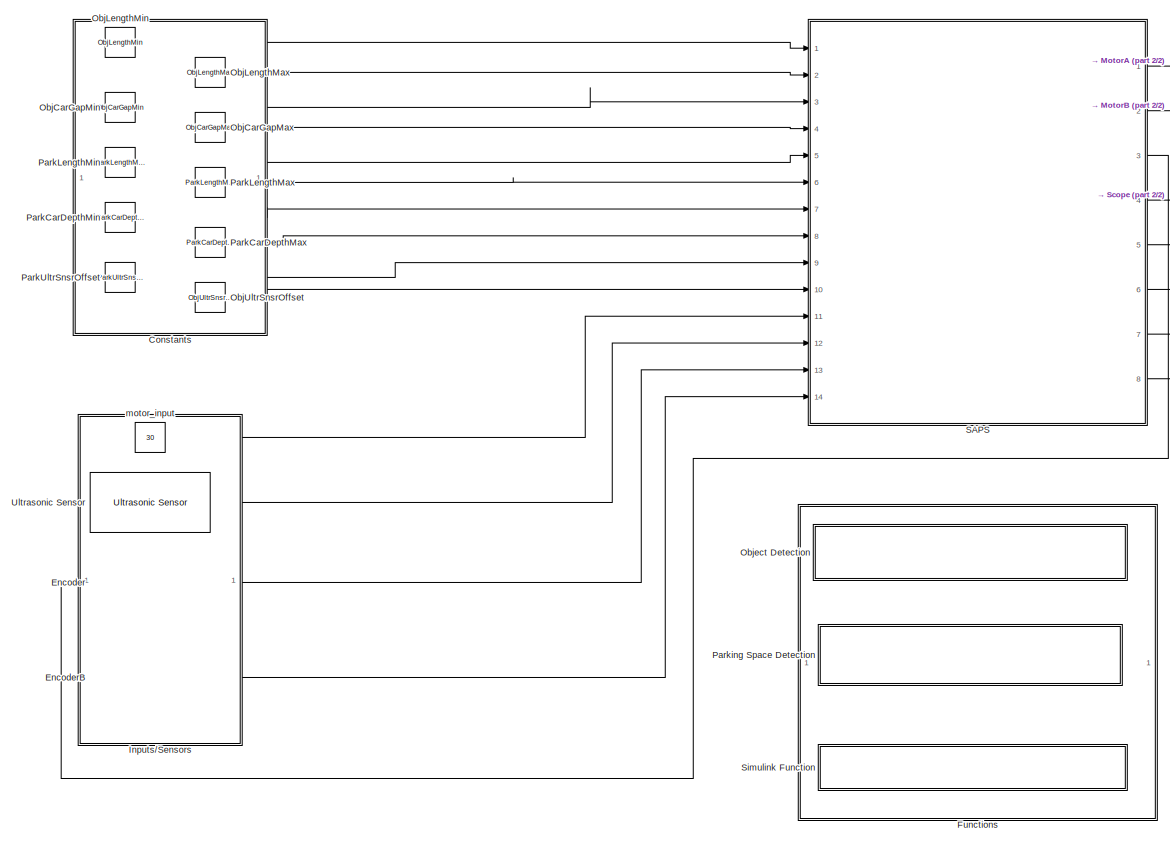
[diagram: root canvas - part 1/2, left side, full height]
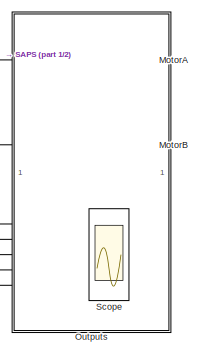
[diagram: root canvas - part 2/2, top right region]
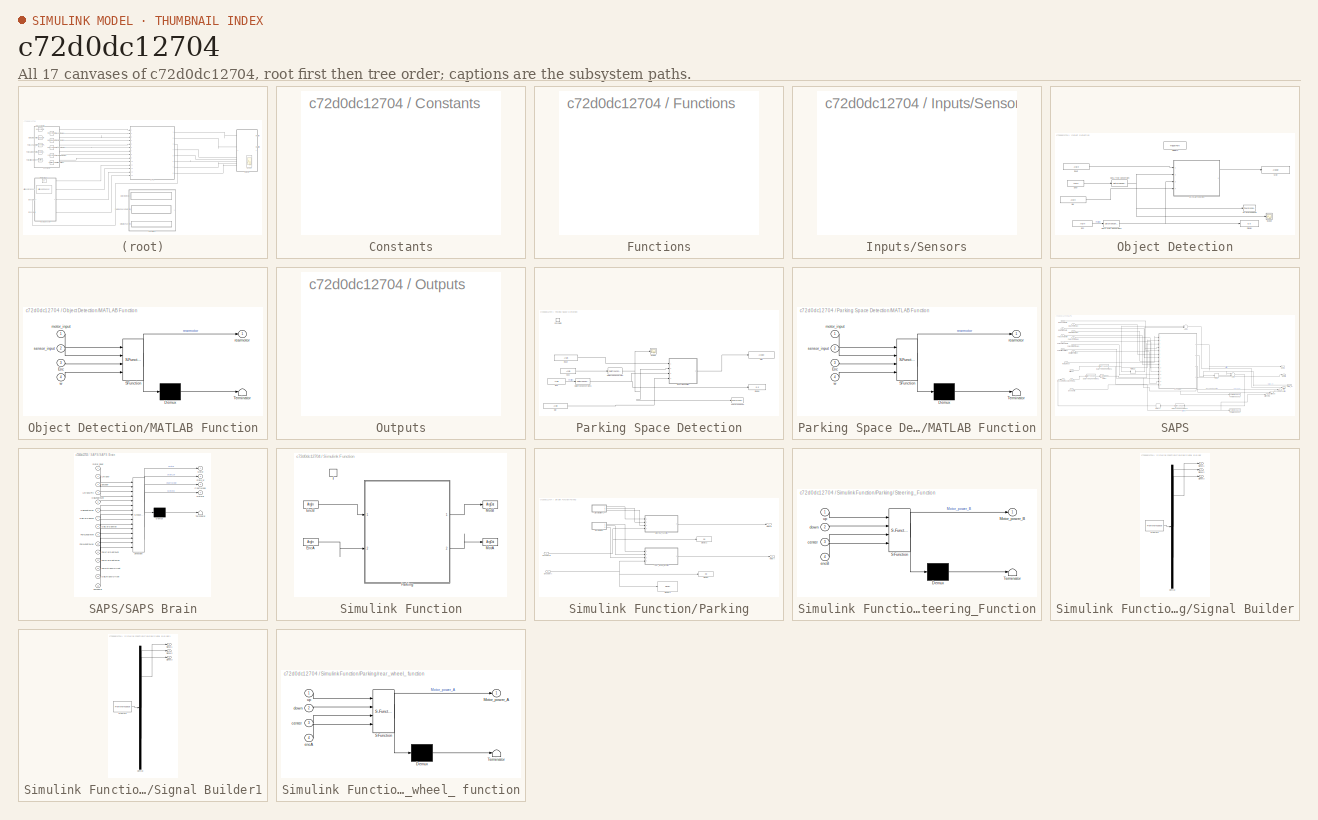
[diagram: thumbnail index - all 17 canvases of the model, root first then tree order]
MODEL slx_c72d0dc12704
KIND model
CONFIG AbsTol = auto
CONFIG FixedStep = auto
CONFIG MaxStep = auto
CONFIG MinStep = auto
CONFIG RelTol = 1e-3
CONFIG SampleTimeConstraint = Unconstrained
CONFIG Solver = ode45
CONFIG SolverMode = Auto
CONFIG SolverName = ode45
CONFIG StartTime = 0.0
CONFIG StopTime = 10.0
BLOCK [SubSystem] Constants
  Ports = []
  RequestExecContextInheritance = off
BLOCK [Reference] Encoder  REF=legoev3lib/Encoder
  Ports = [1, 1]
  SourceBlock = legoev3lib/Encoder
  SourceType = LEGO MINDSTORMS EV3 Encoder
  opMode = Reset by external signal
  portNumber = A
  sampleTime = 0.01
BLOCK [Reference] EncoderB  REF=legoev3lib/Encoder
  Ports = [0, 1]
  SourceBlock = legoev3lib/Encoder
  SourceType = LEGO MINDSTORMS EV3 Encoder
  opMode = No reset
  portNumber = B
  sampleTime = 0.01
BLOCK [SubSystem] Functions
  Ports = []
  RequestExecContextInheritance = off
BLOCK [SubSystem] Inputs//Sensors
  Ports = []
  RequestExecContextInheritance = off
BLOCK [Reference] MotorA  REF=legoev3lib/Motor
  Ports = [1]
  SourceBlock = legoev3lib/Motor
  SourceType = LEGO MINDSTORMS EV3 Motor
  sportNumber = A
  sstopAction = Brake
BLOCK [Reference] MotorB  REF=legoev3lib/Motor
  Ports = [1]
  SourceBlock = legoev3lib/Motor
  SourceType = LEGO MINDSTORMS EV3 Motor
  sportNumber = B
  sstopAction = Brake
BLOCK [Constant] ObjCarGapMax
  Value = ObjCarGapMax
BLOCK [Constant] ObjCarGapMin
  Value = ObjCarGapMin
BLOCK [Constant] ObjLengthMax
  Value = ObjLengthMax
BLOCK [Constant] ObjLengthMin
  Value = ObjLengthMin
BLOCK [Constant] ObjUltrSnsrOffset
  Value = ObjUltrSnsrOffset
BLOCK [SubSystem] Object Detection
  Ports = [0, 0, 0, 1]
  RequestExecContextInheritance = off
  TreatAsAtomicUnit = on
BLOCK [DataTypeConversion] Object Detection/Data Type Conversion
  RndMeth = Floor
  SaturateOnIntegerOverflow = off
BLOCK [DataTypeConversion] Object Detection/Data Type Conversion1
  RndMeth = Floor
  SaturateOnIntegerOverflow = off
BLOCK [Display] Object Detection/Display
  Decimation = 1
  Ports = [1]
BLOCK [ArgIn] Object Detection/Enc
  ArgumentName = Enc
  DisableCoverage = on
  Port = 3
BLOCK [SubSystem] Object Detection/MATLAB Function
  ErrorFcn = Stateflow.Translate.translate
  PermitHierarchicalResolution = ExplicitOnly
  Ports = [4, 1]
  RequestExecContextInheritance = off
  SFBlockType = MATLAB Function
  TreatAsAtomicUnit = on
BLOCK [Demux] Object Detection/MATLAB Function/ Demux 
  Outputs = 1
  Ports = [1, 1]
BLOCK [S-Function] Object Detection/MATLAB Function/ SFunction 
  EnableBusSupport = on
  FunctionName = sf_sfun
  PortCounts = [4 2]
  Ports = [4, 2]
  Tag = Stateflow S-Function stateflow6 2
BLOCK [Terminator] Object Detection/MATLAB Function/ Terminator 
BLOCK [Inport] Object Detection/MATLAB Function/Enc
  IconDisplay = Port number
  Port = 3
BLOCK [Inport] Object Detection/MATLAB Function/motor_input
  IconDisplay = Port number
BLOCK [Outport] Object Detection/MATLAB Function/rearmotor
  IconDisplay = Port number
BLOCK [Inport] Object Detection/MATLAB Function/sensor_input
  IconDisplay = Port number
  Port = 2
BLOCK [Inport] Object Detection/MATLAB Function/w
  IconDisplay = Port number
  Port = 4
BLOCK [ArgOut] Object Detection/Mot
  ArgumentName = MotA
  DisableCoverage = on
BLOCK [TriggerPort] Object Detection/ObjDetn
  FunctionName = ObjDetn
  IsSimulinkFunction = on
  Ports = []
  StatesWhenEnabling = held
  TriggerType = function-call
BLOCK [Scope] Object Detection/Scope
  Floating = off
  NumInputPorts = 1
  Ports = [1]
  YMax = 3.15
  YMin = 2.85
BLOCK [ArgIn] Object Detection/Snsr
  ArgumentName = Snsr
  DisableCoverage = on
  Port = 2
BLOCK [ToWorkspace] Object Detection/To Workspace2
  FixptAsFi = on
  MaxDataPoints = inf
  Ports = [1]
  SampleTime = -1
  Save2DSignal = 3-D array (concatenate along third dimension)
  VariableName = UltrSnsr_w
BLOCK [ArgIn] Object Detection/input
  ArgumentName = input
  DisableCoverage = on
BLOCK [ArgIn] Object Detection/ww
  ArgumentName = ww
  DisableCoverage = on
  Port = 4
BLOCK [SubSystem] Outputs
  Ports = []
  RequestExecContextInheritance = off
BLOCK [Constant] ParkCarDepthMax
  Value = ParkCarDepthMax
BLOCK [Constant] ParkCarDepthMin
  Value = ParkCarDepthMin
BLOCK [Constant] ParkLengthMax
  Value = ParkLengthMax
BLOCK [Constant] ParkLengthMin
  Value = ParkLengthMin
BLOCK [Constant] ParkUltrSnsrOffset
  Value = ParkUltrSnsrOffset
BLOCK [SubSystem] Parking Space Detection
  Ports = [0, 0, 0, 1]
  RequestExecContextInheritance = off
  TreatAsAtomicUnit = on
BLOCK [DataTypeConversion] Parking Space Detection/Data Type Conversion
  RndMeth = Floor
  SaturateOnIntegerOverflow = off
BLOCK [DataTypeConversion] Parking Space Detection/Data Type Conversion1
  RndMeth = Floor
  SaturateOnIntegerOverflow = off
BLOCK [Display] Parking Space Detection/Display
  Decimation = 1
  Ports = [1]
BLOCK [ArgIn] Parking Space Detection/Enc
  ArgumentName = Enc
  DisableCoverage = on
  Port = 3
BLOCK [SubSystem] Parking Space Detection/MATLAB Function
  ErrorFcn = Stateflow.Translate.translate
  PermitHierarchicalResolution = ExplicitOnly
  Ports = [4, 1]
  RequestExecContextInheritance = off
  SFBlockType = MATLAB Function
  TreatAsAtomicUnit = on
BLOCK [Demux] Parking Space Detection/MATLAB Function/ Demux 
  Outputs = 1
  Ports = [1, 1]
BLOCK [S-Function] Parking Space Detection/MATLAB Function/ SFunction 
  EnableBusSupport = on
  FunctionName = sf_sfun
  PortCounts = [4 2]
  Ports = [4, 2]
  Tag = Stateflow S-Function stateflow6 1
BLOCK [Terminator] Parking Space Detection/MATLAB Function/ Terminator 
BLOCK [Inport] Parking Space Detection/MATLAB Function/Enc
  IconDisplay = Port number
  Port = 3
BLOCK [Inport] Parking Space Detection/MATLAB Function/motor_input
  IconDisplay = Port number
BLOCK [Outport] Parking Space Detection/MATLAB Function/rearmotor
  IconDisplay = Port number
BLOCK [Inport] Parking Space Detection/MATLAB Function/sensor_input
  IconDisplay = Port number
  Port = 2
BLOCK [Inport] Parking Space Detection/MATLAB Function/w
  IconDisplay = Port number
  Port = 4
BLOCK [ArgOut] Parking Space Detection/Mot
  ArgumentName = MotA
  DisableCoverage = on
BLOCK [TriggerPort] Parking Space Detection/ParkDetn
  FunctionName = ParkDetn
  IsSimulinkFunction = on
  Ports = []
  StatesWhenEnabling = held
  TriggerType = function-call
BLOCK [Scope] Parking Space Detection/Scope
  Floating = off
  NumInputPorts = 1
  Ports = [1]
  SaveName = ScopeData1
  YMax = 3
  YMin = 3
BLOCK [ArgIn] Parking Space Detection/Snsr
  ArgumentName = Snsr
  DisableCoverage = on
  Port = 2
BLOCK [ToWorkspace] Parking Space Detection/To Workspace2
  FixptAsFi = on
  MaxDataPoints = inf
  Ports = [1]
  SampleTime = -1
  Save2DSignal = 3-D array (concatenate along third dimension)
  VariableName = w1
BLOCK [ArgIn] Parking Space Detection/input
  ArgumentName = input
  DisableCoverage = on
BLOCK [ArgIn] Parking Space Detection/ww
  ArgumentName = ww
  DisableCoverage = on
  Port = 4
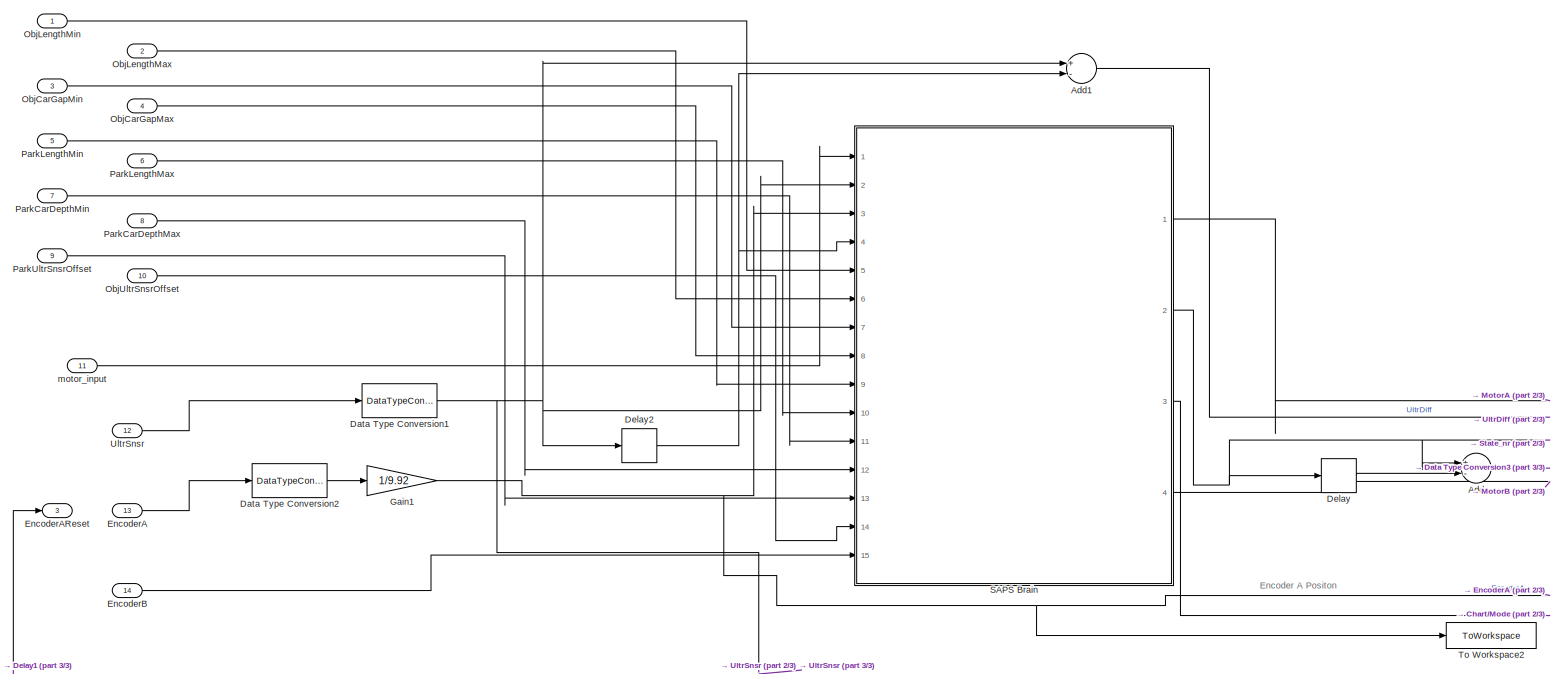
[diagram: SAPS - part 1/3, most of the canvas]
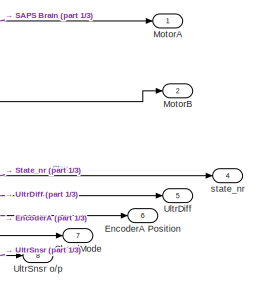
[diagram: SAPS - part 2/3, middle right region]
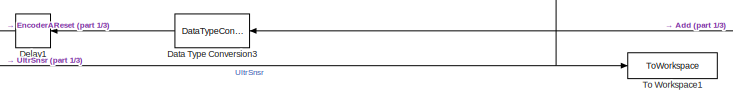
[diagram: SAPS - part 3/3, bottom center region]
BLOCK [SubSystem] SAPS
  Ports = [14, 8]
  RequestExecContextInheritance = off
BLOCK [Sum] SAPS/Add
  InputSameDT = off
  Inputs = +-
  OutDataTypeStr = Inherit: Inherit via internal rule
  Ports = [2, 1]
  SaturateOnIntegerOverflow = off
BLOCK [Sum] SAPS/Add1
  InputSameDT = off
  Inputs = +-
  OutDataTypeStr = Inherit: Inherit via internal rule
  Ports = [2, 1]
  SaturateOnIntegerOverflow = off
BLOCK [Outport] SAPS/Chart//Mode
  IconDisplay = Port number
  Port = 7
BLOCK [DataTypeConversion] SAPS/Data Type Conversion1
  RndMeth = Floor
  SaturateOnIntegerOverflow = off
BLOCK [DataTypeConversion] SAPS/Data Type Conversion2
  RndMeth = Floor
  SaturateOnIntegerOverflow = off
BLOCK [DataTypeConversion] SAPS/Data Type Conversion3
  OutDataTypeStr = int8
  RndMeth = Floor
  SaturateOnIntegerOverflow = off
BLOCK [Delay] SAPS/Delay
  DelayLength = 1
  InitialCondition = 0
  InputPortMap = u0
  Ports = [1, 1]
BLOCK [Delay] SAPS/Delay1
  DelayLength = 1
  InitialCondition = 0
  InputPortMap = u0
  Ports = [1, 1]
BLOCK [Delay] SAPS/Delay2
  DelayLength = 1
  InitialCondition = 0
  InputPortMap = u0
  Ports = [1, 1]
BLOCK [Inport] SAPS/EncoderA
  IconDisplay = Port number
  Port = 13
BLOCK [Outport] SAPS/EncoderA Position
  IconDisplay = Port number
  Port = 6
BLOCK [Outport] SAPS/EncoderAReset
  IconDisplay = Port number
  Port = 3
BLOCK [Inport] SAPS/EncoderB
  IconDisplay = Port number
  Port = 14
BLOCK [Gain] SAPS/Gain1
  Gain = 1/9.92
  OutDataTypeStr = Inherit: Inherit via internal rule
  ParamDataTypeStr = Inherit: Inherit via internal rule
  SaturateOnIntegerOverflow = off
BLOCK [Outport] SAPS/MotorA
  IconDisplay = Port number
BLOCK [Outport] SAPS/MotorB
  IconDisplay = Port number
  Port = 2
BLOCK [Inport] SAPS/ObjCarGapMax
  IconDisplay = Port number
  Port = 4
BLOCK [Inport] SAPS/ObjCarGapMin
  IconDisplay = Port number
  Port = 3
BLOCK [Inport] SAPS/ObjLengthMax
  IconDisplay = Port number
  Port = 2
BLOCK [Inport] SAPS/ObjLengthMin
  IconDisplay = Port number
BLOCK [Inport] SAPS/ObjUltrSnsrOffset
  IconDisplay = Port number
  Port = 10
BLOCK [Inport] SAPS/ParkCarDepthMax
  IconDisplay = Port number
  Port = 8
BLOCK [Inport] SAPS/ParkCarDepthMin
  IconDisplay = Port number
  Port = 7
BLOCK [Inport] SAPS/ParkLengthMax
  IconDisplay = Port number
  Port = 6
BLOCK [Inport] SAPS/ParkLengthMin
  IconDisplay = Port number
  Port = 5
BLOCK [Inport] SAPS/ParkUltrSnsrOffset
  IconDisplay = Port number
  Port = 9
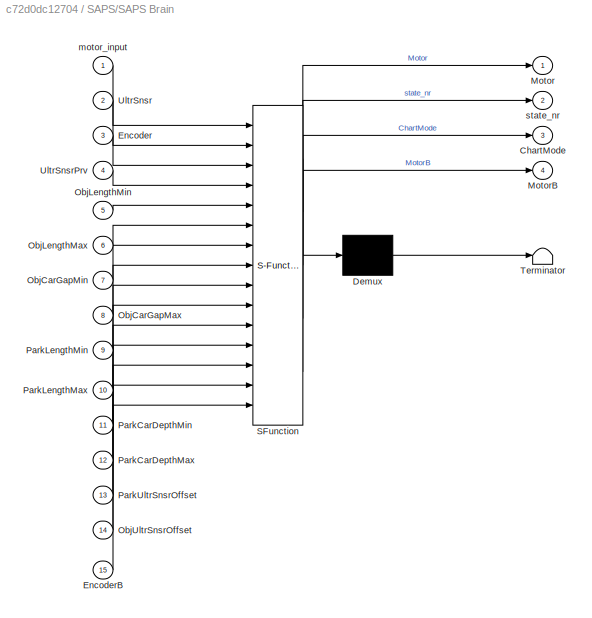
BLOCK [SubSystem] SAPS/SAPS Brain
  ErrorFcn = Stateflow.Translate.translate
  PermitHierarchicalResolution = ExplicitOnly
  Ports = [15, 4]
  RequestExecContextInheritance = off
  SFBlockType = Chart
  TreatAsAtomicUnit = on
BLOCK [Demux] SAPS/SAPS Brain/ Demux 
  Outputs = 1
  Ports = [1, 1]
BLOCK [S-Function] SAPS/SAPS Brain/ SFunction 
  EnableBusSupport = on
  FunctionName = sf_sfun
  PortCounts = [15 5]
  Ports = [15, 5]
  Tag = Stateflow S-Function stateflow6 3
BLOCK [Terminator] SAPS/SAPS Brain/ Terminator 
BLOCK [Outport] SAPS/SAPS Brain/ChartMode
  IconDisplay = Port number
  Port = 3
BLOCK [Inport] SAPS/SAPS Brain/Encoder
  IconDisplay = Port number
  Port = 3
BLOCK [Inport] SAPS/SAPS Brain/EncoderB
  IconDisplay = Port number
  Port = 15
BLOCK [Outport] SAPS/SAPS Brain/Motor
  IconDisplay = Port number
BLOCK [Outport] SAPS/SAPS Brain/MotorB
  IconDisplay = Port number
  Port = 4
BLOCK [Inport] SAPS/SAPS Brain/ObjCarGapMax
  IconDisplay = Port number
  Port = 8
BLOCK [Inport] SAPS/SAPS Brain/ObjCarGapMin
  IconDisplay = Port number
  Port = 7
BLOCK [Inport] SAPS/SAPS Brain/ObjLengthMax
  IconDisplay = Port number
  Port = 6
BLOCK [Inport] SAPS/SAPS Brain/ObjLengthMin
  IconDisplay = Port number
  Port = 5
BLOCK [Inport] SAPS/SAPS Brain/ObjUltrSnsrOffset
  IconDisplay = Port number
  Port = 14
BLOCK [Inport] SAPS/SAPS Brain/ParkCarDepthMax
  IconDisplay = Port number
  Port = 12
BLOCK [Inport] SAPS/SAPS Brain/ParkCarDepthMin
  IconDisplay = Port number
  Port = 11
BLOCK [Inport] SAPS/SAPS Brain/ParkLengthMax
  IconDisplay = Port number
  Port = 10
BLOCK [Inport] SAPS/SAPS Brain/ParkLengthMin
  IconDisplay = Port number
  Port = 9
BLOCK [Inport] SAPS/SAPS Brain/ParkUltrSnsrOffset
  IconDisplay = Port number
  Port = 13
BLOCK [Inport] SAPS/SAPS Brain/UltrSnsr
  IconDisplay = Port number
  Port = 2
BLOCK [Inport] SAPS/SAPS Brain/UltrSnsrPrv
  IconDisplay = Port number
  Port = 4
BLOCK [Inport] SAPS/SAPS Brain/motor_input
  IconDisplay = Port number
BLOCK [Outport] SAPS/SAPS Brain/state_nr
  IconDisplay = Port number
  Port = 2
BLOCK [ToWorkspace] SAPS/To Workspace1
  FixptAsFi = on
  MaxDataPoints = inf
  Ports = [1]
  SampleTime = -1
  Save2DSignal = 3-D array (concatenate along third dimension)
  VariableName = problem_encoder1
BLOCK [ToWorkspace] SAPS/To Workspace2
  FixptAsFi = on
  MaxDataPoints = inf
  Ports = [1]
  SampleTime = -1
  Save2DSignal = 3-D array (concatenate along third dimension)
  VariableName = problem_encoder
BLOCK [Outport] SAPS/UltrDiff
  IconDisplay = Port number
  Port = 5
BLOCK [Inport] SAPS/UltrSnsr
  IconDisplay = Port number
  Port = 12
BLOCK [Outport] SAPS/UltrSnsr o//p
  IconDisplay = Port number
  Port = 8
BLOCK [Inport] SAPS/motor_input
  IconDisplay = Port number
  Port = 11
BLOCK [Outport] SAPS/state_nr
  IconDisplay = Port number
  Port = 4
BLOCK [Scope] Scope
  Floating = off
  NumInputPorts = 5
  Ports = [5]
  SaveName = ScopeData4
  TimeRange = 9.76
  YMax = 2~20~60~2~40
  YMin = 1~-20~0~1~0
BLOCK [SubSystem] Simulink Function
  Ports = [0, 0, 0, 1]
  RequestExecContextInheritance = off
  TreatAsAtomicUnit = on
BLOCK [ArgIn] Simulink Function/EncA
  ArgumentName = EncA
  DisableCoverage = on
  Port = 2
BLOCK [ArgIn] Simulink Function/EncB
  ArgumentName = EncB
  DisableCoverage = on
BLOCK [ArgOut] Simulink Function/MotA
  ArgumentName = MotA
  DisableCoverage = on
  Port = 2
BLOCK [ArgOut] Simulink Function/MotB
  ArgumentName = MotB
  DisableCoverage = on
BLOCK [SubSystem] Simulink Function/Parking
  Ports = [2, 2]
  RequestExecContextInheritance = off
BLOCK [SubSystem] Simulink Function/Parking/ Steering_Function
  ErrorFcn = Stateflow.Translate.translate
  PermitHierarchicalResolution = ExplicitOnly
  Ports = [4, 1]
  RequestExecContextInheritance = off
  SFBlockType = MATLAB Function
  TreatAsAtomicUnit = on
BLOCK [Demux] Simulink Function/Parking/ Steering_Function/ Demux 
  Outputs = 1
  Ports = [1, 1]
BLOCK [S-Function] Simulink Function/Parking/ Steering_Function/ SFunction 
  EnableBusSupport = on
  FunctionName = sf_sfun
  PortCounts = [4 2]
  Ports = [4, 2]
  Tag = Stateflow S-Function stateflow6 4
BLOCK [Terminator] Simulink Function/Parking/ Steering_Function/ Terminator 
BLOCK [Outport] Simulink Function/Parking/ Steering_Function/Motor_power_B
  IconDisplay = Port number
BLOCK [Inport] Simulink Function/Parking/ Steering_Function/center
  IconDisplay = Port number
  Port = 3
BLOCK [Inport] Simulink Function/Parking/ Steering_Function/down
  IconDisplay = Port number
  Port = 2
BLOCK [Inport] Simulink Function/Parking/ Steering_Function/encB
  IconDisplay = Port number
  Port = 4
BLOCK [Inport] Simulink Function/Parking/ Steering_Function/up
  IconDisplay = Port number
BLOCK [Display] Simulink Function/Parking/Display
  Decimation = 1
  Format = decimal (Stored Integer)
  Ports = [1]
BLOCK [Reference] Simulink Function/Parking/Display1  REF=legoev3lib/Display
  Ports = [1]
  SourceBlock = legoev3lib/Display
  SourceType = LEGO MINDSTORMS EV3 Display
  slcdFormat = Decimal
  slcdLine = 1
  slcdStr = enc A
BLOCK [Display] Simulink Function/Parking/Display2
  Decimation = 1
  Format = decimal (Stored Integer)
  Ports = [1]
BLOCK [Inport] Simulink Function/Parking/EncoderA
  IconDisplay = Port number
  Port = 2
BLOCK [Inport] Simulink Function/Parking/EncoderB
  IconDisplay = Port number
BLOCK [Outport] Simulink Function/Parking/MotorA
  IconDisplay = Port number
  Port = 2
BLOCK [Outport] Simulink Function/Parking/MotorB
  IconDisplay = Port number
BLOCK [SubSystem] Simulink Function/Parking/Signal Builder
  ClipboardFcn = sigbuilder_block('clipboard');
  CloseFcn = sigbuilder_block('close');
  ContinueFcn = sigbuilder_block('continue');
  CopyFcn = sigbuilder_block('copy');
  DeleteFcn = sigbuilder_block('delete');
  LoadFcn = sigbuilder_block('load');
  MaskHideContents = on
  ModelCloseFcn = sigbuilder_block('modelClose');
  NameChangeFcn = sigbuilder_block('namechange');
  OpenFcn = sigbuilder_block('open',[438 199 636 400 ]);
  PauseFcn = sigbuilder_block('pause');
  Ports = [0, 3]
  PreSaveFcn = sigbuilder_block('preSave');
  RequestExecContextInheritance = off
  StartFcn = sigbuilder_block('start');
  StopFcn = sigbuilder_block('stop');
  Tag = STV Subsys
BLOCK [Demux] Simulink Function/Parking/Signal Builder/Demux
  Outputs = 3
  Ports = [1, 3]
  Tag = STV Demux
BLOCK [FromWorkspace] Simulink Function/Parking/Signal Builder/FromWs
  SampleTime = 0
  Tag = STV FromWs
  VariableName = tuvar
  ZeroCross = on
BLOCK [Outport] Simulink Function/Parking/Signal Builder/Signal 1
  IconDisplay = Port number
  Tag = STV Outport
BLOCK [Outport] Simulink Function/Parking/Signal Builder/Signal 2
  IconDisplay = Port number
  Port = 2
  Tag = STV Outport
BLOCK [Outport] Simulink Function/Parking/Signal Builder/Signal 3
  IconDisplay = Port number
  Port = 3
  Tag = STV Outport
BLOCK [SubSystem] Simulink Function/Parking/Signal Builder1
  ClipboardFcn = sigbuilder_block('clipboard');
  CloseFcn = sigbuilder_block('close');
  ContinueFcn = sigbuilder_block('continue');
  CopyFcn = sigbuilder_block('copy');
  DeleteFcn = sigbuilder_block('delete');
  LoadFcn = sigbuilder_block('load');
  MaskHideContents = on
  ModelCloseFcn = sigbuilder_block('modelClose');
  NameChangeFcn = sigbuilder_block('namechange');
  OpenFcn = sigbuilder_block('open',[438 199 636 400 ]);
  PauseFcn = sigbuilder_block('pause');
  Ports = [0, 3]
  PreSaveFcn = sigbuilder_block('preSave');
  RequestExecContextInheritance = off
  StartFcn = sigbuilder_block('start');
  StopFcn = sigbuilder_block('stop');
  Tag = STV Subsys
BLOCK [Demux] Simulink Function/Parking/Signal Builder1/Demux
  Outputs = 3
  Ports = [1, 3]
  Tag = STV Demux
BLOCK [FromWorkspace] Simulink Function/Parking/Signal Builder1/FromWs
  SampleTime = 0
  Tag = STV FromWs
  VariableName = tuvar
  ZeroCross = on
BLOCK [Outport] Simulink Function/Parking/Signal Builder1/Signal 1
  IconDisplay = Port number
  Tag = STV Outport
BLOCK [Outport] Simulink Function/Parking/Signal Builder1/Signal 2
  IconDisplay = Port number
  Port = 2
  Tag = STV Outport
BLOCK [Outport] Simulink Function/Parking/Signal Builder1/Signal 3
  IconDisplay = Port number
  Port = 3
  Tag = STV Outport
BLOCK [SubSystem] Simulink Function/Parking/rear_wheel_ function
  ErrorFcn = Stateflow.Translate.translate
  PermitHierarchicalResolution = ExplicitOnly
  Ports = [4, 1]
  RequestExecContextInheritance = off
  SFBlockType = MATLAB Function
  TreatAsAtomicUnit = on
BLOCK [Demux] Simulink Function/Parking/rear_wheel_ function/ Demux 
  Outputs = 1
  Ports = [1, 1]
BLOCK [S-Function] Simulink Function/Parking/rear_wheel_ function/ SFunction 
  EnableBusSupport = on
  FunctionName = sf_sfun
  PortCounts = [4 2]
  Ports = [4, 2]
  Tag = Stateflow S-Function stateflow6 5
BLOCK [Terminator] Simulink Function/Parking/rear_wheel_ function/ Terminator 
BLOCK [Outport] Simulink Function/Parking/rear_wheel_ function/Motor_power_A
  IconDisplay = Port number
BLOCK [Inport] Simulink Function/Parking/rear_wheel_ function/center
  IconDisplay = Port number
  Port = 3
BLOCK [Inport] Simulink Function/Parking/rear_wheel_ function/down
  IconDisplay = Port number
  Port = 2
BLOCK [Inport] Simulink Function/Parking/rear_wheel_ function/encA
  IconDisplay = Port number
  Port = 4
BLOCK [Inport] Simulink Function/Parking/rear_wheel_ function/up
  IconDisplay = Port number
BLOCK [TriggerPort] Simulink Function/f
  FunctionName = f
  IsSimulinkFunction = on
  Ports = []
  StatesWhenEnabling = held
  TriggerType = function-call
BLOCK [Reference] Ultrasonic Sensor  REF=legoev3lib/Ultrasonic Sensor
  PortNumber = 1
  Ports = [0, 1]
  SourceBlock = legoev3lib/Ultrasonic Sensor
  SourceType = LEGO MINDSTORMS EV3 Ultrasonic Sensor
  sampleTime = 0.01
BLOCK [Constant] motor_input
  Value = 30
ANNOTATION SAPS: Encoder A Positon
LINE Encoder:1 -> SAPS:13
LINE EncoderB:1 -> SAPS:14
LINE ObjCarGapMax:1 -> SAPS:4
LINE ObjCarGapMin:1 -> SAPS:3
LINE ObjLengthMax:1 -> SAPS:2
LINE ObjLengthMin:1 -> SAPS:1
LINE ObjUltrSnsrOffset:1 -> SAPS:10
NET Object Detection/Data Type Conversion1:1 -> Object Detection/Display:1, Object Detection/MATLAB Function:3
NET Object Detection/Data Type Conversion:1 -> Object Detection/MATLAB Function:2, Object Detection/Scope:1, Object Detection/To Workspace2:1
LINE Object Detection/Enc:1 -> Object Detection/Data Type Conversion1:1
LINE Object Detection/MATLAB Function:1 -> Object Detection/Mot:1
LINE Object Detection/Snsr:1 -> Object Detection/Data Type Conversion:1
LINE Object Detection/input:1 -> Object Detection/MATLAB Function:1
LINE Object Detection/ww:1 -> Object Detection/MATLAB Function:4
LINE ParkCarDepthMax:1 -> SAPS:8
LINE ParkCarDepthMin:1 -> SAPS:7
LINE ParkLengthMax:1 -> SAPS:6
LINE ParkLengthMin:1 -> SAPS:5
LINE ParkUltrSnsrOffset:1 -> SAPS:9
NET Parking Space Detection/Data Type Conversion1:1 -> Parking Space Detection/Display:1, Parking Space Detection/MATLAB Function:3
NET Parking Space Detection/Data Type Conversion:1 -> Parking Space Detection/MATLAB Function:2, Parking Space Detection/Scope:1, Parking Space Detection/To Workspace2:1
LINE Parking Space Detection/Enc:1 -> Parking Space Detection/Data Type Conversion1:1
LINE Parking Space Detection/MATLAB Function:1 -> Parking Space Detection/Mot:1
LINE Parking Space Detection/Snsr:1 -> Parking Space Detection/Data Type Conversion:1
LINE Parking Space Detection/input:1 -> Parking Space Detection/MATLAB Function:1
LINE Parking Space Detection/ww:1 -> Parking Space Detection/MATLAB Function:4
LINE SAPS/Add1:1 -> SAPS/UltrDiff:1
LINE SAPS/Add:1 -> SAPS/Data Type Conversion3:1
NET SAPS/Data Type Conversion1:1 -> SAPS/Add1:1, SAPS/Delay2:1, SAPS/SAPS Brain:2, SAPS/To Workspace1:1, SAPS/UltrSnsr o//p:1
LINE SAPS/Data Type Conversion2:1 -> SAPS/Gain1:1
LINE SAPS/Data Type Conversion3:1 -> SAPS/Delay1:1
LINE SAPS/Delay1:1 -> SAPS/EncoderAReset:1
NET SAPS/Delay2:1 -> SAPS/Add1:2, SAPS/SAPS Brain:4
LINE SAPS/Delay:1 -> SAPS/Add:2
LINE SAPS/EncoderA:1 -> SAPS/Data Type Conversion2:1
LINE SAPS/EncoderB:1 -> SAPS/SAPS Brain:15
NET SAPS/Gain1:1 -> SAPS/EncoderA Position:1, SAPS/SAPS Brain:3, SAPS/To Workspace2:1
LINE SAPS/ObjCarGapMax:1 -> SAPS/SAPS Brain:8
LINE SAPS/ObjCarGapMin:1 -> SAPS/SAPS Brain:7
LINE SAPS/ObjLengthMax:1 -> SAPS/SAPS Brain:6
LINE SAPS/ObjLengthMin:1 -> SAPS/SAPS Brain:5
LINE SAPS/ObjUltrSnsrOffset:1 -> SAPS/SAPS Brain:14
LINE SAPS/ParkCarDepthMax:1 -> SAPS/SAPS Brain:12
LINE SAPS/ParkCarDepthMin:1 -> SAPS/SAPS Brain:11
LINE SAPS/ParkLengthMax:1 -> SAPS/SAPS Brain:10
LINE SAPS/ParkLengthMin:1 -> SAPS/SAPS Brain:9
LINE SAPS/ParkUltrSnsrOffset:1 -> SAPS/SAPS Brain:13
LINE SAPS/SAPS Brain:1 -> SAPS/MotorA:1
NET SAPS/SAPS Brain:2 -> SAPS/Add:1, SAPS/Delay:1, SAPS/state_nr:1
LINE SAPS/SAPS Brain:3 -> SAPS/Chart//Mode:1
LINE SAPS/SAPS Brain:4 -> SAPS/MotorB:1
LINE SAPS/UltrSnsr:1 -> SAPS/Data Type Conversion1:1
LINE SAPS/motor_input:1 -> SAPS/SAPS Brain:1
LINE SAPS:1 -> MotorA:1
LINE SAPS:2 -> MotorB:1
LINE SAPS:3 -> Encoder:1
LINE SAPS:4 -> Scope:1
LINE SAPS:5 -> Scope:2
LINE SAPS:6 -> Scope:3
LINE SAPS:7 -> Scope:4
LINE SAPS:8 -> Scope:5
LINE Simulink Function/EncA:1 -> Simulink Function/Parking:2
LINE Simulink Function/EncB:1 -> Simulink Function/Parking:1
LINE Simulink Function/Parking/ Steering_Function:1 -> Simulink Function/Parking/MotorB:1
NET Simulink Function/Parking/EncoderA:1 -> Simulink Function/Parking/Display1:1, Simulink Function/Parking/Display:1, Simulink Function/Parking/rear_wheel_ function:4
NET Simulink Function/Parking/EncoderB:1 -> Simulink Function/Parking/ Steering_Function:4, Simulink Function/Parking/Display2:1
LINE Simulink Function/Parking/Signal Builder1:1 -> Simulink Function/Parking/ Steering_Function:1
LINE Simulink Function/Parking/Signal Builder1:2 -> Simulink Function/Parking/ Steering_Function:2
LINE Simulink Function/Parking/Signal Builder1:3 -> Simulink Function/Parking/ Steering_Function:3
LINE Simulink Function/Parking/Signal Builder:1 -> Simulink Function/Parking/rear_wheel_ function:1
LINE Simulink Function/Parking/Signal Builder:2 -> Simulink Function/Parking/rear_wheel_ function:2
LINE Simulink Function/Parking/Signal Builder:3 -> Simulink Function/Parking/rear_wheel_ function:3
LINE Simulink Function/Parking/rear_wheel_ function:1 -> Simulink Function/Parking/MotorA:1
LINE Simulink Function/Parking:1 -> Simulink Function/MotB:1
LINE Simulink Function/Parking:2 -> Simulink Function/MotA:1
LINE Ultrasonic Sensor:1 -> SAPS:12
LINE motor_input:1 -> SAPS:11
note: NET lines group one-source signal fan-out (src -> all destinations, sorted); 1:1 wires keep LINE
CHART Parking Space Detection/MATLAB Function states=1 transitions=1
  STATE_LABEL 'eML_blk_kernel()'
  STATE_LABEL 'SCRIPT:\nfunction rearmotor = fcn(motor_input,sensor_input,Enc,w)\n%#codegen\n%d = z\n%u = 0; %Encoder reset\n% x = w;\n% length2=0;\n%reset11=0;\n%state3=0;\nif(sensor_input>ParkCarDepthMin)&&(sensor_input<=ParkCarDepthMax)\n    rearmotor=motor_input-10;\n%     if((sensor_input-w)>2)||((sensor_input-w)<-2)\n%         rearmotor = motor_input - 15;\n%     elseif(sensor_input>4)&&(sensor_input<=20)\n%         rea...<+524ch>'
CHART Object Detection/MATLAB Function states=1 transitions=1
  STATE_LABEL 'eML_blk_kernel()'
  STATE_LABEL 'SCRIPT:\nfunction rearmotor = fcn(motor_input,sensor_input,Enc,w)\n%#codegen\n%d = z\n%u = 0; %Encoder reset\n%x = w;\n%lenght=0;\n%reset1=0;\n%state2=0;\nif(sensor_input>ObjCarGapMin)&&(sensor_input<=ObjCarGapMax)\n    rearmotor=motor_input;\n%     if((sensor_input-w)>2)|| ((sensor_input-w)<-2)\n%         rearmotor = motor_input - 15;\n%     elseif(sensor_input>4)&&(sensor_input<=20)\n%         rearmotor = mot...<+510ch>'
CHART SAPS/SAPS Brain states=8 transitions=8
  STATE_LABEL 'First_Object\nen:\nstate_nr=1;\ndu:\nMotor = ObjDetn(motor_input,UltrSnsr,Encoder,w);'
  STATE_LABEL ' '
  STATE_LABEL ' '
  STATE_LABEL 'Parking\nen:\nstate_nr=4;\ndu:\n[Motor,MotorB] = f(EncB,Encoder);'
  STATE_LABEL 'Park_Space\nen:\nstate_nr=2;\ndu:\nMotor = ParkDetn(motor_input,UltrSnsr,Encoder,w);'
  STATE_LABEL ' '
  STATE_LABEL ' '
  STATE_LABEL ' '
  STATE_LABEL ' '
  STATE_LABEL 'Second_Object\nen:\nstate_nr=3;\ndu:\nMotor = ObjDetn(motor_input,UltrSnsr,Encoder,w);\nex:\nMotor=0;'
CHART Simulink Function/Parking/ Steering_Function states=1 transitions=1
  STATE_LABEL 'eML_blk_kernel()'
  STATE_LABEL 'SCRIPT:\nfunction Motor_power_B=fcn(up,down,center,encB)\n%#codegen\nif(up==1)&&(encB>=-400)\n   Motor_power_B=-70;\nelseif(down==1)&&(encB<=400)\n   Motor_power_B=70;\nelseif (center==1)&&(encB>=5)\n %%  while(encB~=0)\n   Motor_power_B=-70;\nelse\n   Motor_power_B=0;\nend\nend\n\n \n    '
CHART Simulink Function/Parking/rear_wheel_ function states=1 transitions=1
  STATE_LABEL 'eML_blk_kernel()'
  STATE_LABEL 'SCRIPT:\nfunction Motor_power_A=fcn(up, down,center,encA)\n%#codegen\nif (up==1)&&(encA>=-240)\n  Motor_power_A = -30;\nelseif (down==1)&&(encA>=-500)\n     Motor_power_A = -30;\nelseif (center==1)&&(encA<=-445)\n    Motor_power_A=30;\nelse\n    Motor_power_A=0; \nend\nend\n\n \n    '
